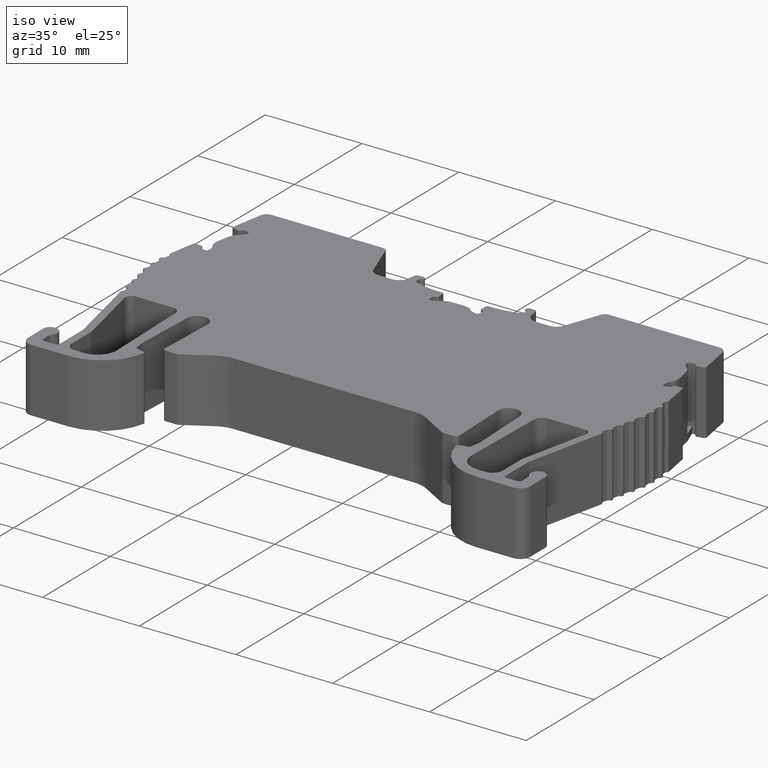
[diagram: clean part render]
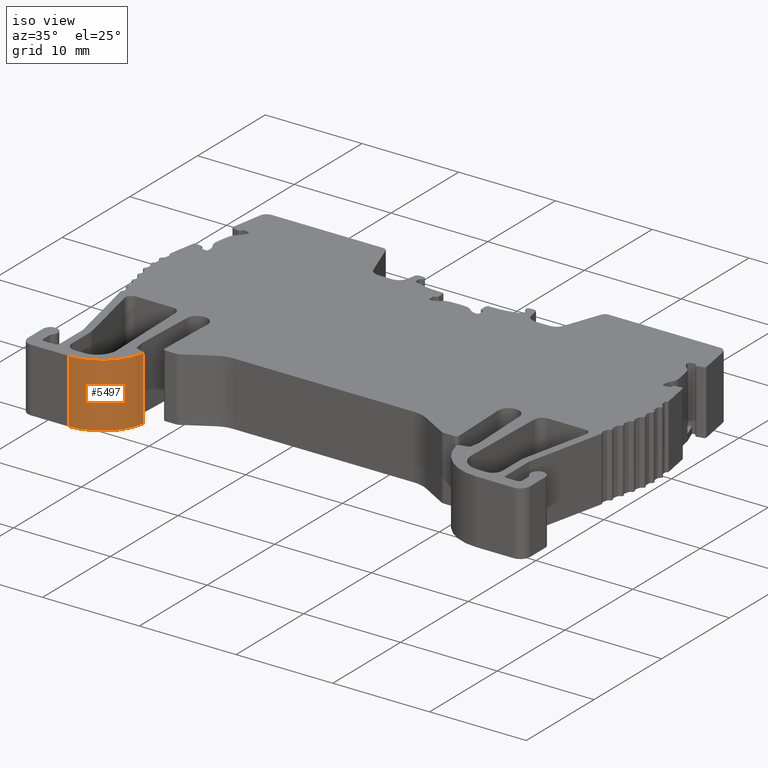
[diagram: same view with one face highlighted and labeled with its STEP entity id]
A machine part, iso view. The second image highlights one B-rep face of the part: STEP entity #5497.
In plain terms, the highlighted cylindrical surface (partial cylindrical patch) has radius 5 mm, axis along (0, 0, -1).
Its self-contained STEP definition (entity closure, byte-faithful):
#3094 = FACE_OUTER_BOUND ( 'NONE', #4570, .T. ) ;
#3096 = CARTESIAN_POINT ( 'NONE',  ( 1913.294964260150000, 492.6674757026440300, 64.80301117275325900 ) ) ;
#3097 = DIRECTION ( 'NONE',  ( 0.0000000000000000000, 0.0000000000000000000, -1.000000000000000000 ) ) ;
#3107 = DIRECTION ( 'NONE',  ( -1.000000000000000000, 0.0000000000000000000, 0.0000000000000000000 ) ) ;
#3111 = CYLINDRICAL_SURFACE ( 'NONE', #3528, 5.000000000000337500 ) ;
#3528 = AXIS2_PLACEMENT_3D ( 'NONE', #3096, #3097, #3107 ) ;
#3591 = VECTOR ( 'NONE', #11140, 1000.000000000000000 ) ;
#3612 = CIRCLE ( 'NONE', #3618, 5.000000000000337500 ) ;
#3618 = AXIS2_PLACEMENT_3D ( 'NONE', #11239, #11246, #11247 ) ;
#3664 = VECTOR ( 'NONE', #11400, 1000.000000000000000 ) ;
#3721 = CIRCLE ( 'NONE', #3746, 5.000000000000337500 ) ;
#3746 = AXIS2_PLACEMENT_3D ( 'NONE', #7019, #7011, #7003 ) ;
#4570 = EDGE_LOOP ( 'NONE', ( #9967, #9981, #9932, #9973 ) ) ;
#5024 = EDGE_CURVE ( 'NONE', #10622, #10580, #11160, .T. ) ;
#5084 = EDGE_CURVE ( 'NONE', #10579, #10580, #3612, .T. ) ;
#5145 = EDGE_CURVE ( 'NONE', #10592, #10579, #11398, .T. ) ;
#5261 = EDGE_CURVE ( 'NONE', #10592, #10622, #3721, .T. ) ;
#5497 = ADVANCED_FACE ( 'NONE', ( #3094 ), #3111, .T. ) ;
#7003 = DIRECTION ( 'NONE',  ( 1.000000000000000000, 0.0000000000000000000, 0.0000000000000000000 ) ) ;
#7011 = DIRECTION ( 'NONE',  ( -0.0000000000000000000, -0.0000000000000000000, -1.000000000000000000 ) ) ;
#7019 = CARTESIAN_POINT ( 'NONE',  ( 1913.294964260150000, 492.6674757026440300, 3.299999999999997200 ) ) ;
#7856 = CARTESIAN_POINT ( 'NONE',  ( 1913.294960898124800, 487.6674757026448800, 3.299999999999997200 ) ) ;
#7877 = CARTESIAN_POINT ( 'NONE',  ( 1918.211251765030300, 491.7563680419669400, 3.299999999999997200 ) ) ;
#7884 = CARTESIAN_POINT ( 'NONE',  ( 1918.211251765031900, 491.7563680419666500, -3.299999999999999800 ) ) ;
#7890 = CARTESIAN_POINT ( 'NONE',  ( 1913.294960898124800, 487.6674757026430000, -3.299999999999999800 ) ) ;
#9932 = ORIENTED_EDGE ( 'NONE', *, *, #5024, .T. ) ;
#9967 = ORIENTED_EDGE ( 'NONE', *, *, #5145, .F. ) ;
#9973 = ORIENTED_EDGE ( 'NONE', *, *, #5084, .F. ) ;
#9981 = ORIENTED_EDGE ( 'NONE', *, *, #5261, .T. ) ;
#10579 = VERTEX_POINT ( 'NONE', #7884 ) ;
#10580 = VERTEX_POINT ( 'NONE', #7890 ) ;
#10592 = VERTEX_POINT ( 'NONE', #7877 ) ;
#10622 = VERTEX_POINT ( 'NONE', #7856 ) ;
#11120 = CARTESIAN_POINT ( 'NONE',  ( 1913.294960898124800, 487.6674757026430000, 64.80301117275325900 ) ) ;
#11140 = DIRECTION ( 'NONE',  ( 0.0000000000000000000, 0.0000000000000000000, -1.000000000000000000 ) ) ;
#11160 = LINE ( 'NONE', #11120, #3591 ) ;
#11239 = CARTESIAN_POINT ( 'NONE',  ( 1913.294964260150000, 492.6674757026440300, -3.299999999999999800 ) ) ;
#11246 = DIRECTION ( 'NONE',  ( 0.0000000000000000000, 0.0000000000000000000, -1.000000000000000000 ) ) ;
#11247 = DIRECTION ( 'NONE',  ( -1.000000000000000000, 0.0000000000000000000, 0.0000000000000000000 ) ) ;
#11362 = CARTESIAN_POINT ( 'NONE',  ( 1918.211251765031900, 491.7563680419666500, 64.80301117275325900 ) ) ;
#11398 = LINE ( 'NONE', #11362, #3664 ) ;
#11400 = DIRECTION ( 'NONE',  ( 0.0000000000000000000, 0.0000000000000000000, -1.000000000000000000 ) ) ;